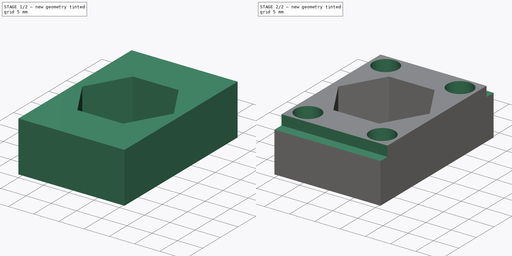
[diagram: build sequence overview — one tinted view per stage of 2, left to right]
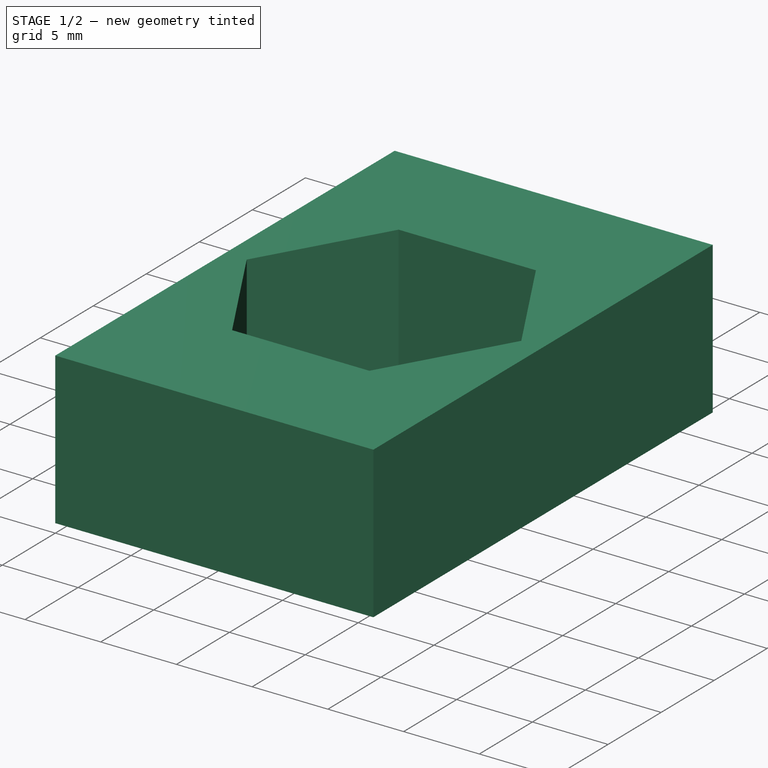
[diagram: stage 1 of 2 — iso view after this stage's code; geometry added in this stage tinted green]
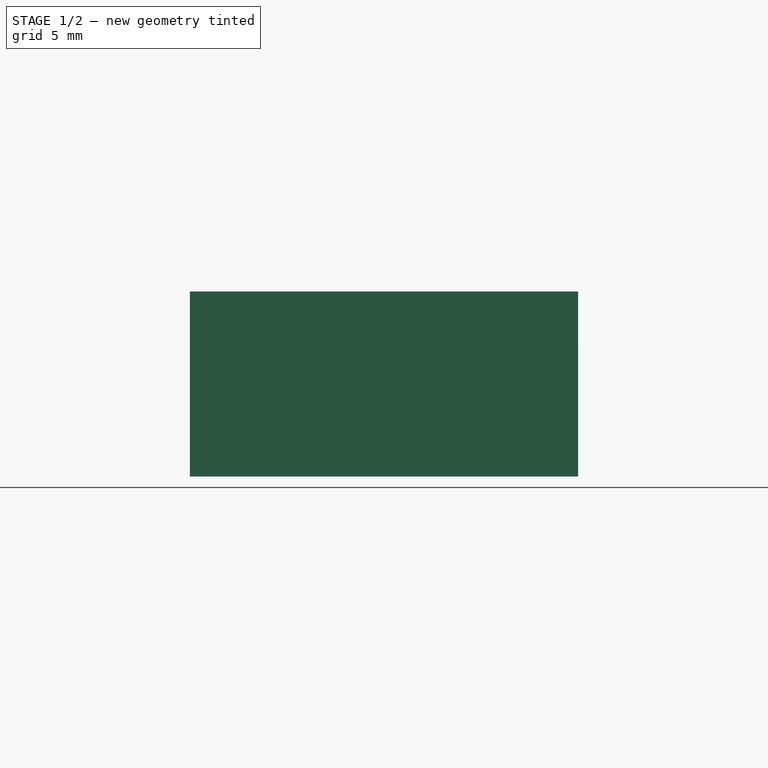
[diagram: stage 1 of 2 — front view after this stage's code; geometry added in this stage tinted green]
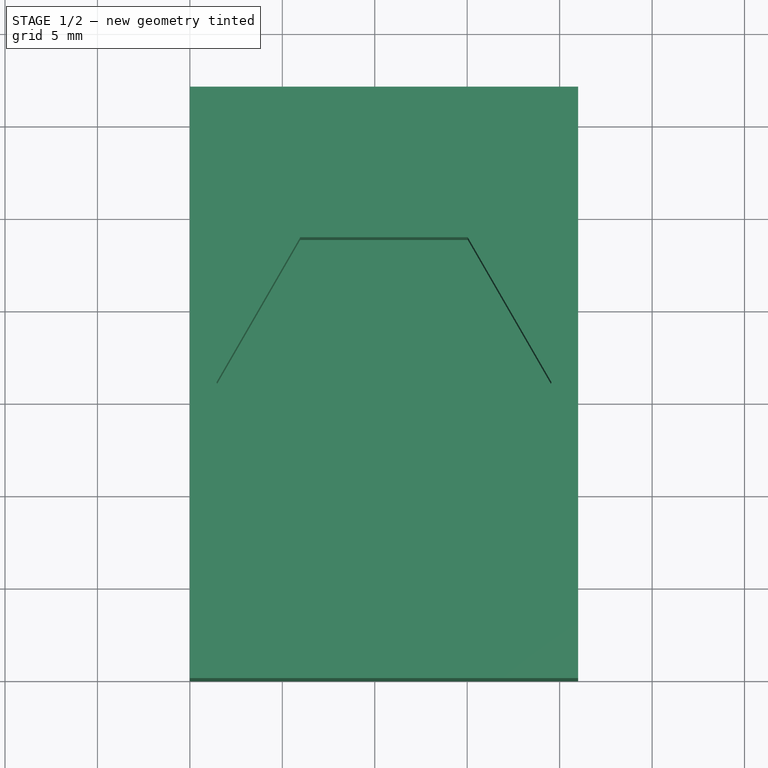
[diagram: stage 1 of 2 — top view after this stage's code; geometry added in this stage tinted green]
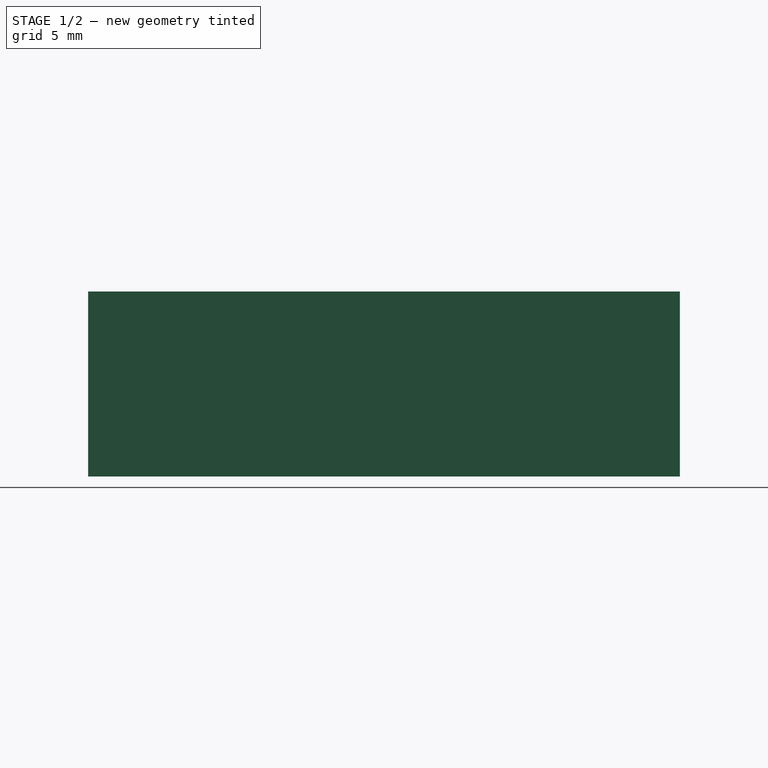
[diagram: stage 1 of 2 — right view after this stage's code; geometry added in this stage tinted green]
FCSTD DOCUMENT
Label: A_E
objects: Sketcher::SketchObject×3, PartDesign::Pocket×3, Part::Box×1
note: 10 computed .brp shape members not serialized (recipe doc carries the construction recipe); baked Part::Feature solids carry a one-line shape summary decoded from their .brp

FEATURE [Part::Box] Box
  Height = 10
  Length = 21
  Width = 32
FEATURE [Sketcher::SketchObject] Sketch
  Placement = pos=(0,0,10) rot=(0,0,1;0rad)
  Support = -> Box [Face6]
  sketch-geometry (8):
    g0: LineSegment [constr] StartX=10.5 StartY=32 StartZ=0 EndX=10.5 EndY=0 EndZ=0
    g1: LineSegment [constr] StartX=0 StartY=16 StartZ=0 EndX=21 EndY=16 EndZ=0
    g2: LineSegment StartX=1.4356 StartY=16 StartZ=0 EndX=5.9678 EndY=23.85 EndZ=0
    g3: LineSegment StartX=5.9678 StartY=23.85 StartZ=0 EndX=15.0322 EndY=23.85 EndZ=0
    g4: LineSegment StartX=15.0322 StartY=23.85 StartZ=0 EndX=19.5644 EndY=16 EndZ=0
    g5: LineSegment StartX=19.5644 StartY=16 StartZ=0 EndX=15.0322 EndY=8.15 EndZ=0
    g6: LineSegment StartX=15.0322 StartY=8.15 StartZ=0 EndX=5.9678 EndY=8.15 EndZ=0
    g7: LineSegment StartX=5.9678 StartY=8.15 StartZ=0 EndX=1.4356 EndY=16 EndZ=0
  constraints (26):
    c: PointOnObject(g0,g-1)
    c: Vertical(g0)
    c: PointOnObject(g1,g-2)
    c: Horizontal(g1)
    c: DistanceY(g0) = -32
    c: DistanceX(g1) = 21
    c: Coincident(g2,g3)
    c: Coincident(g3,g4)
    c: Coincident(g4,g5)
    c: Coincident(g5,g6)
    c: Coincident(g6,g7)
    c: Coincident(g7,g2)
    c: Angle(g2,g3) = 2.0944
    c: Equal(g3,g2)
    c: Equal(g2,g7)
    c: Equal(g7,g6)
    c: Equal(g6,g4)
    c: Equal(g4,g5)
    c: Angle(g3,g4) = 2.0944
    c: DistanceX(g-1,g0) = 10.5
    c: DistanceY(g-1,g1) = 16
    c: Horizontal(g3)
    c: PointOnObject(g2,g1)
    c: Symmetric(g4,g2,g0)
    c: Horizontal(g6)
    c: Distance(g2,g5) = 15.7
FEATURE [PartDesign::Pocket] Pocket
  Length = 8.4
  Sketch = -> Sketch
  Type = 0
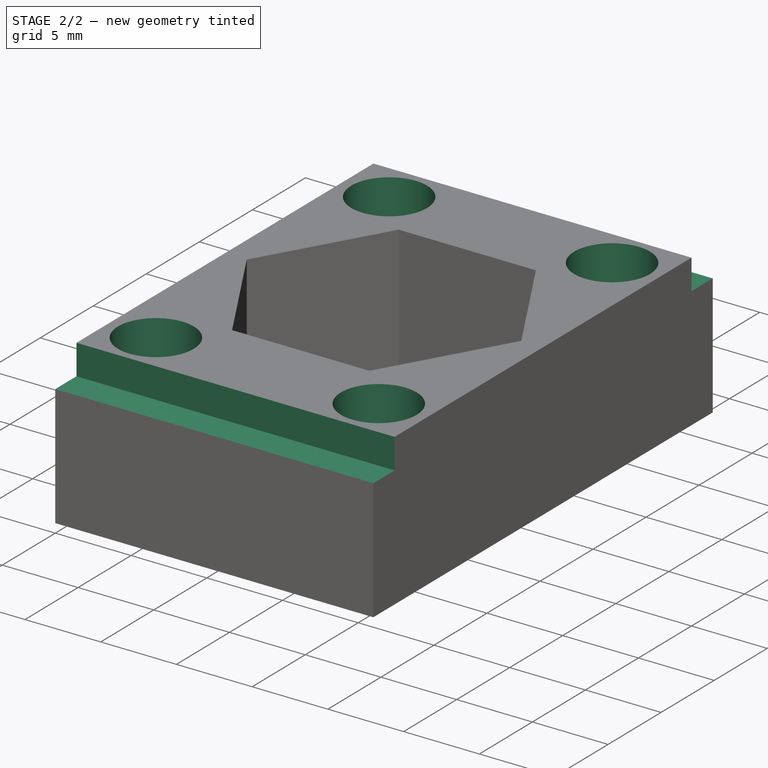
[diagram: stage 2 of 2 — iso view after this stage's code; geometry added in this stage tinted green]
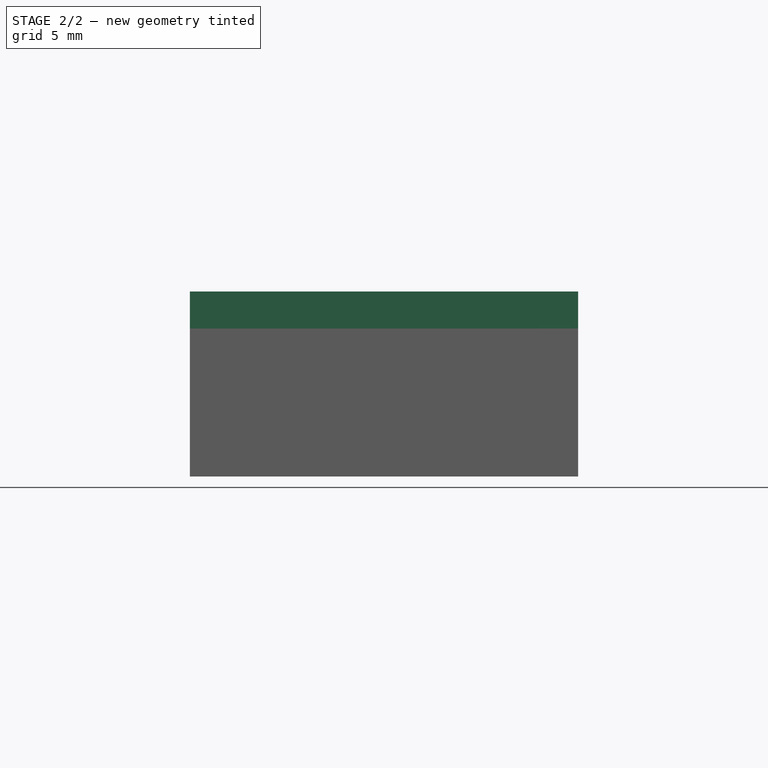
[diagram: stage 2 of 2 — front view after this stage's code; geometry added in this stage tinted green]
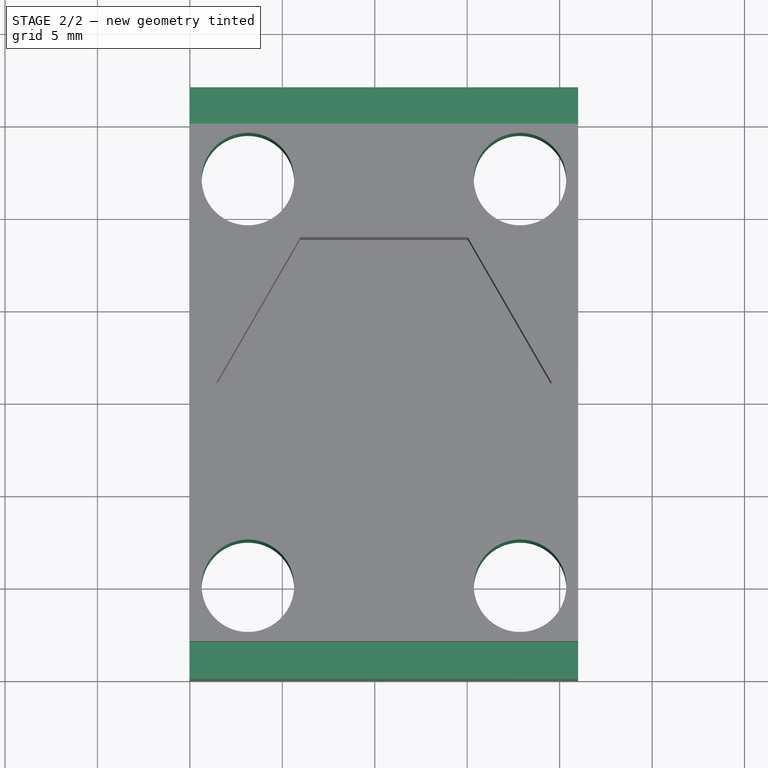
[diagram: stage 2 of 2 — top view after this stage's code; geometry added in this stage tinted green]
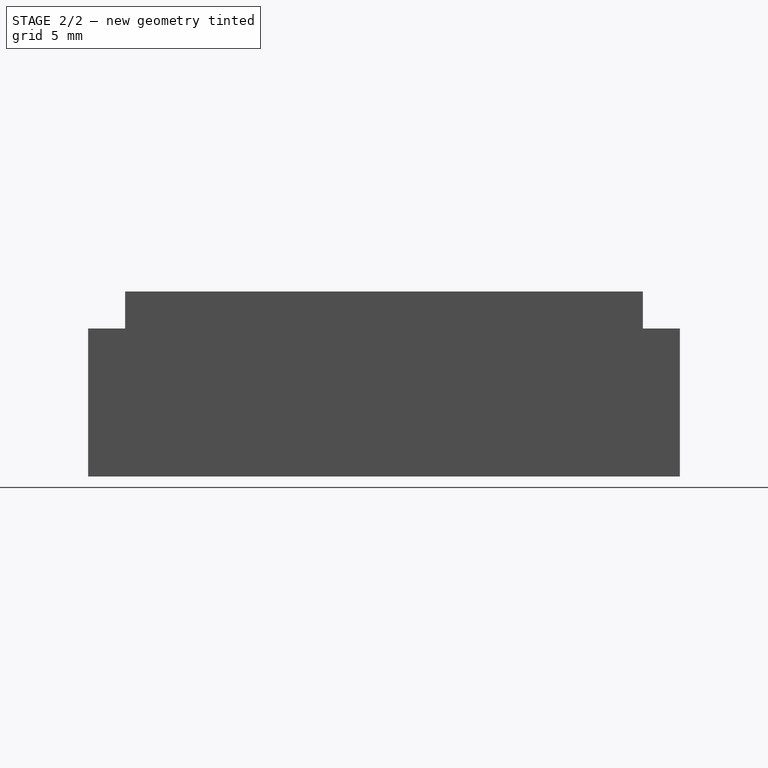
[diagram: stage 2 of 2 — right view after this stage's code; geometry added in this stage tinted green]
FEATURE [Sketcher::SketchObject] Sketch002
  Placement = pos=(0,0,10) rot=(0,0,1;0rad)
  Support = -> Pocket [Face3]
  sketch-geometry (8):
    g0: LineSegment StartX=0 StartY=32 StartZ=0 EndX=21 EndY=32 EndZ=0
    g1: LineSegment StartX=21 StartY=32 StartZ=0 EndX=21 EndY=30 EndZ=0
    g2: LineSegment StartX=21 StartY=30 StartZ=0 EndX=0 EndY=30 EndZ=0
    g3: LineSegment StartX=0 StartY=30 StartZ=0 EndX=0 EndY=32 EndZ=0
    g4: LineSegment StartX=0 StartY=0 StartZ=0 EndX=21 EndY=0 EndZ=0
    g5: LineSegment StartX=21 StartY=0 StartZ=0 EndX=21 EndY=2 EndZ=0
    g6: LineSegment StartX=21 StartY=2 StartZ=0 EndX=0 EndY=2 EndZ=0
    g7: LineSegment StartX=0 StartY=2 StartZ=0 EndX=0 EndY=0 EndZ=0
  constraints (23):
    c: Coincident(g0,g1)
    c: Coincident(g1,g2)
    c: Coincident(g2,g3)
    c: Coincident(g3,g0)
    c: Horizontal(g0)
    c: Horizontal(g2)
    c: Vertical(g1)
    c: Vertical(g3)
    c: PointOnObject(g0,g-2)
    c: Coincident(g4,g5)
    c: Coincident(g5,g6)
    c: Coincident(g6,g7)
    c: Coincident(g7,g4)
    c: Horizontal(g4)
    c: Horizontal(g6)
    c: Vertical(g5)
    c: Vertical(g7)
    c: Coincident(g4,g-1)
    c: Equal(g5,g1)
    c: DistanceY(g-1,g0) = 32
    c: Equal(g4,g0)
    c: DistanceX(g4) = 21
    c: DistanceY(g5) = 2
FEATURE [PartDesign::Pocket] Pocket001
  Length = 2
  Sketch = -> Sketch002
  Type = 0
FEATURE [Sketcher::SketchObject] Sketch001
  Placement = pos=(0,0,10) rot=(0,0,1;0rad)
  Support = -> Pocket001 [Face8]
  sketch-geometry (6):
    g0: LineSegment [constr] StartX=10.5 StartY=32 StartZ=0 EndX=10.5 EndY=0 EndZ=0
    g1: LineSegment [constr] StartX=0 StartY=16 StartZ=0 EndX=21 EndY=16 EndZ=0
    g2: Circle CenterX=3.1405 CenterY=27 CenterZ=0 NormalX=0 NormalY=0 NormalZ=1 Radius=2.5
    g3: Circle CenterX=17.8595 CenterY=27 CenterZ=0 NormalX=0 NormalY=0 NormalZ=1 Radius=2.5
    g4: Circle CenterX=3.1405 CenterY=5 CenterZ=0 NormalX=0 NormalY=0 NormalZ=1 Radius=2.5
    g5: Circle CenterX=17.8595 CenterY=5 CenterZ=0 NormalX=0 NormalY=0 NormalZ=1 Radius=2.5
  constraints (16):
    c: PointOnObject(g0,g-1)
    c: Vertical(g0)
    c: PointOnObject(g1,g-2)
    c: DistanceY(g0) = -32
    c: DistanceX(g1) = 21
    c: Symmetric(g0,g0,g1)
    c: Symmetric(g1,g1,g0)
    c: Equal(g2,g4)
    c: Equal(g4,g5)
    c: Equal(g5,g3)
    c: Radius(g3) = 2.5
    c: Symmetric(g3,g5,g1)
    c: Symmetric(g2,g4,g1)
    c: Symmetric(g2,g3,g0)
    c: DistanceX(g4) = 3.1405
    c: DistanceY(g4) = 5
FEATURE [PartDesign::Pocket] Pocket002
  Length = 5
  Sketch = -> Sketch001
  Type = 1
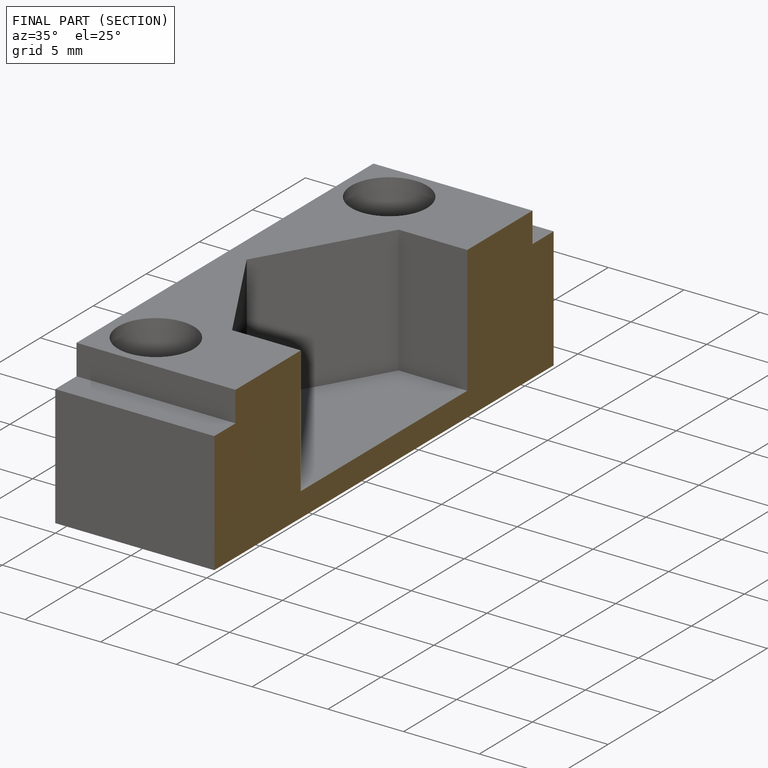
[diagram: finished part — half-section view (interior)]
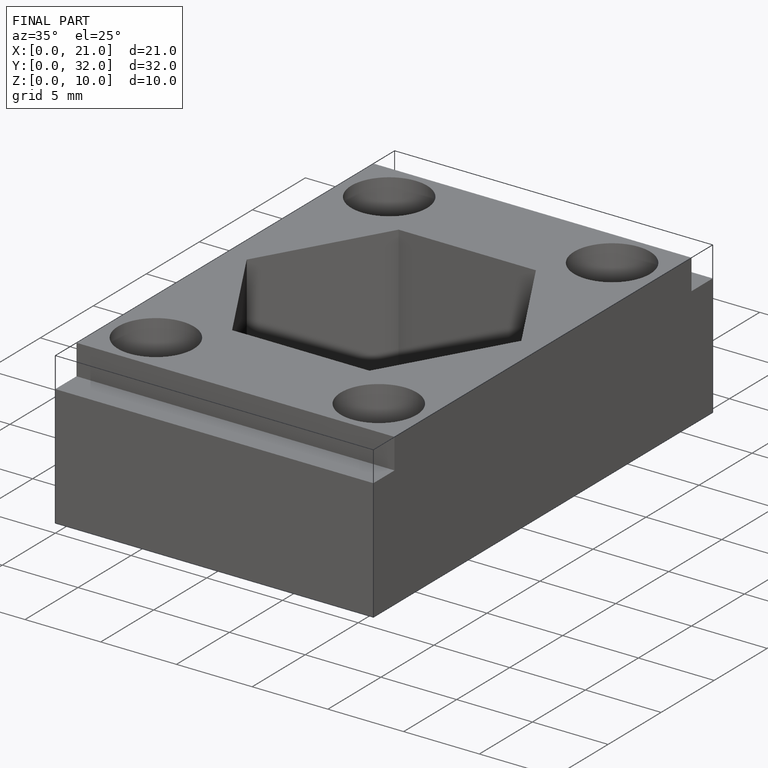
[diagram: finished part — iso view with bounding-box wireframe]
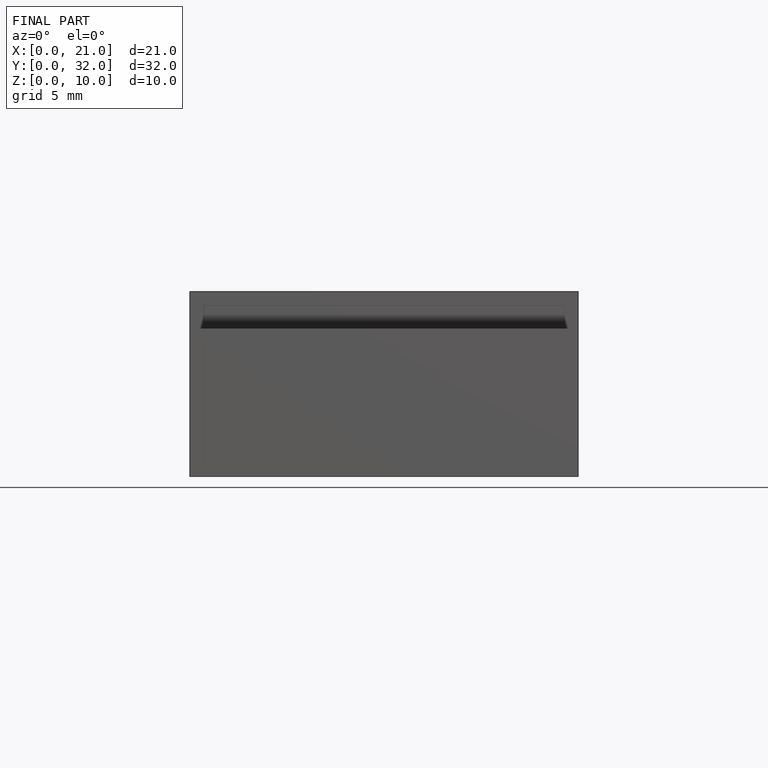
[diagram: finished part — front view with bounding-box wireframe]
